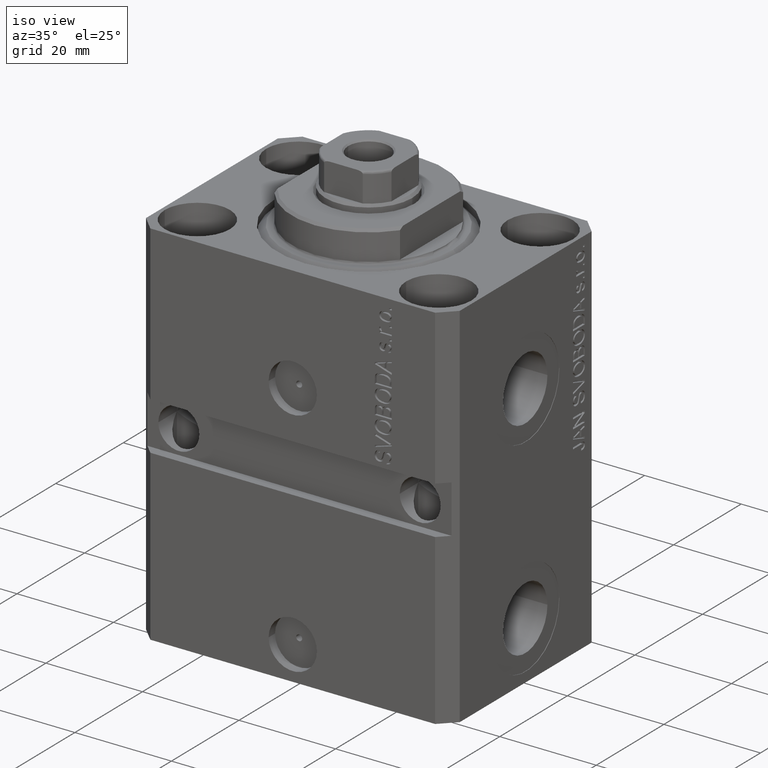
[diagram: clean part render]
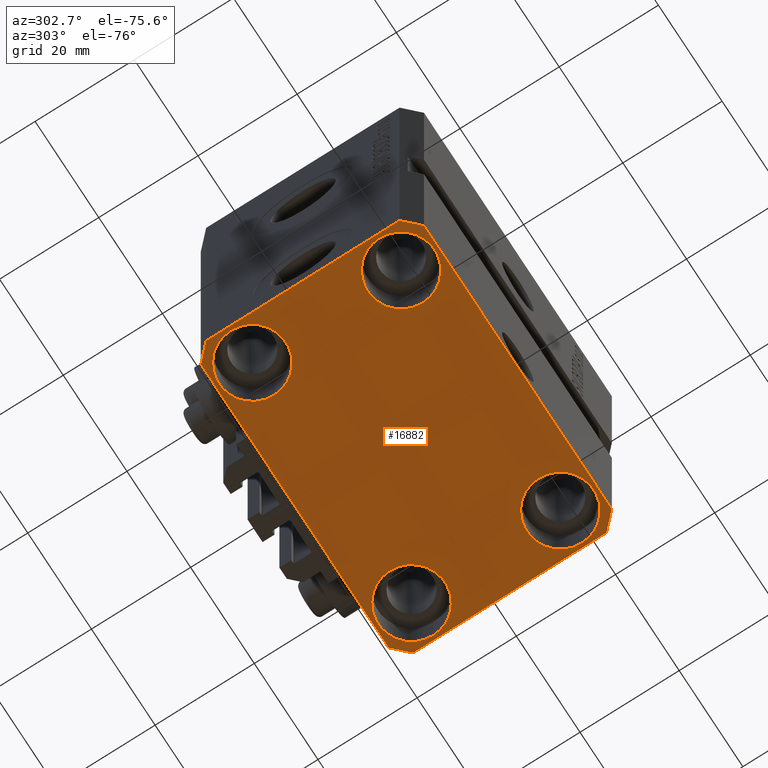
[diagram: tour spotlight — one face highlighted and labeled with its STEP entity id]
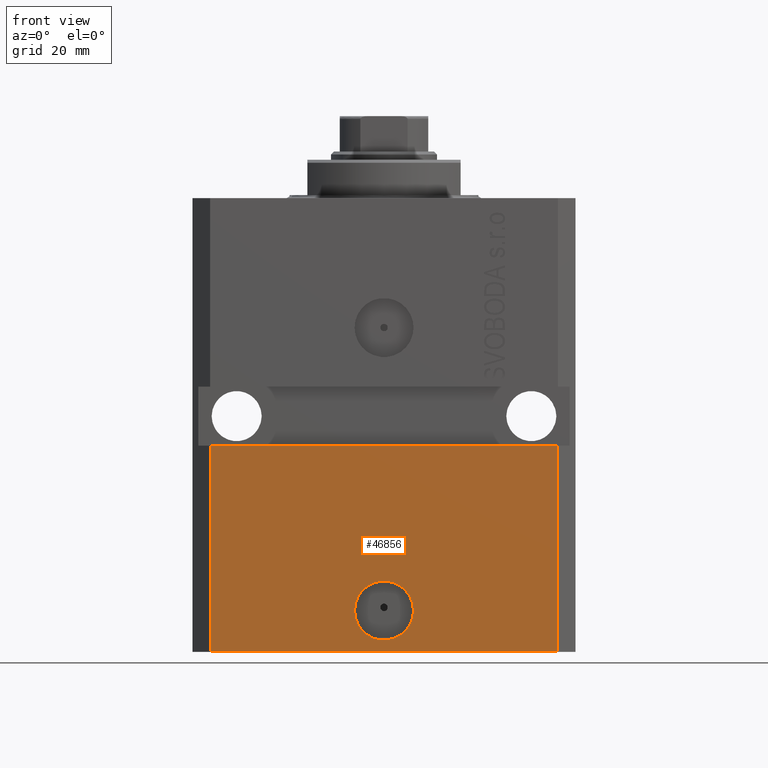
[diagram: tour spotlight — one face highlighted and labeled with its STEP entity id]
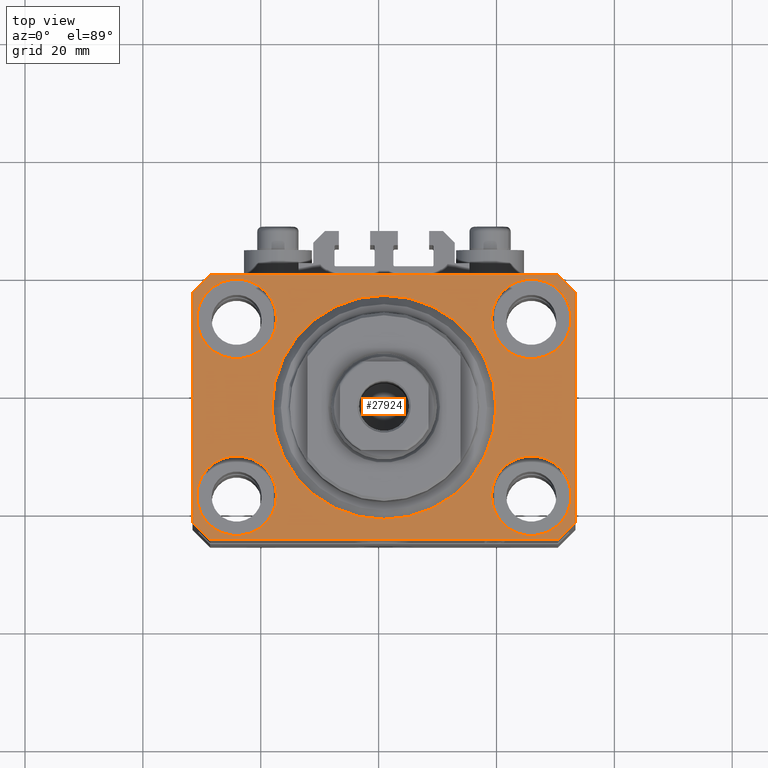
[diagram: tour spotlight — one face highlighted and labeled with its STEP entity id]
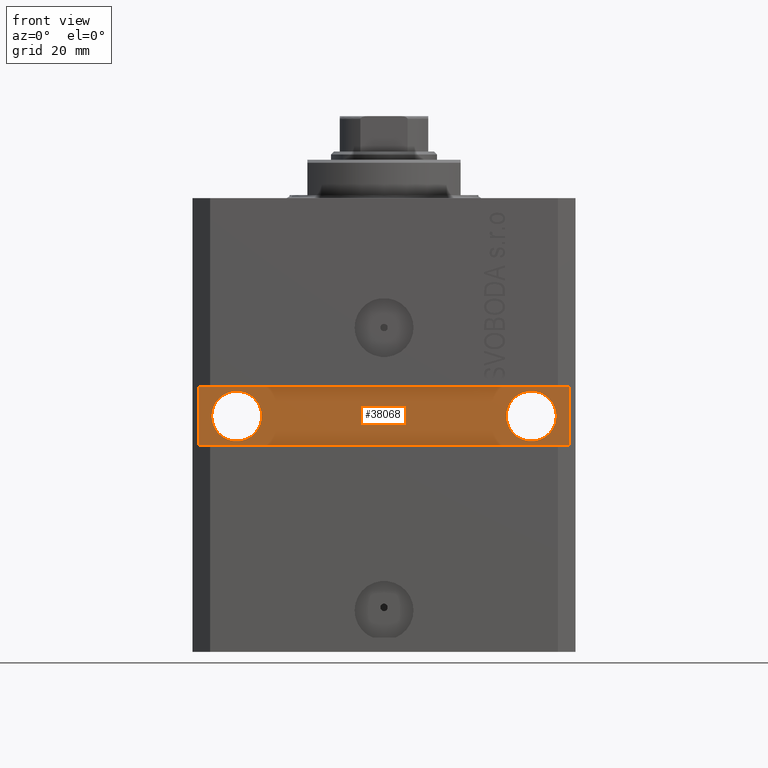
[diagram: tour spotlight — one face highlighted and labeled with its STEP entity id]
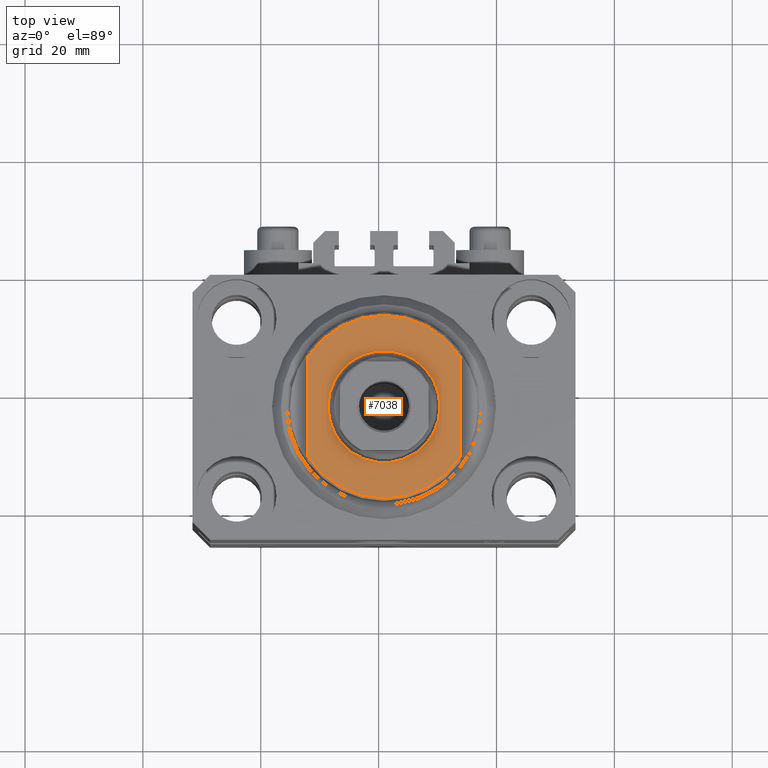
[diagram: tour spotlight — one face highlighted and labeled with its STEP entity id]
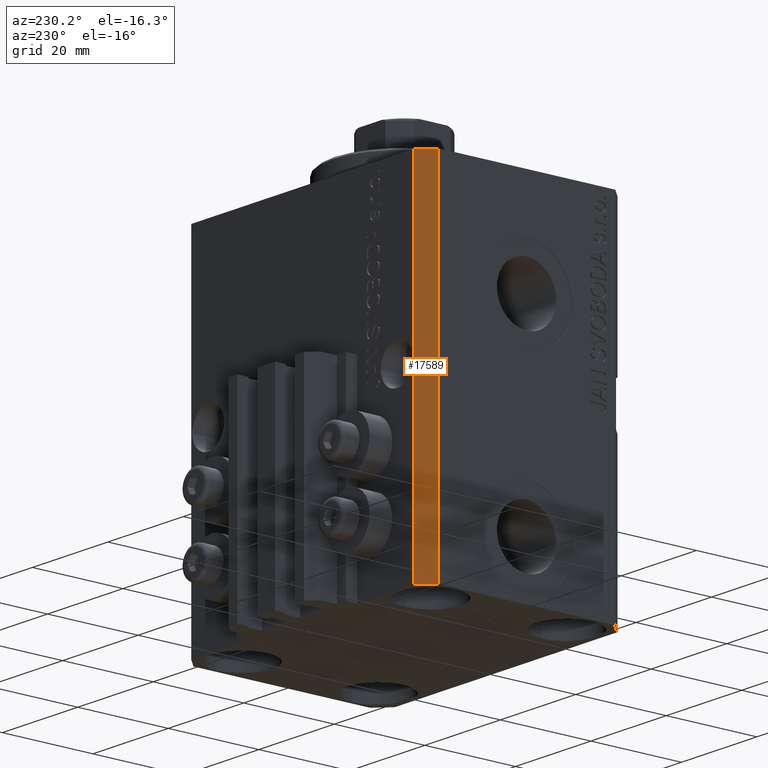
[diagram: tour spotlight — one face highlighted and labeled with its STEP entity id]
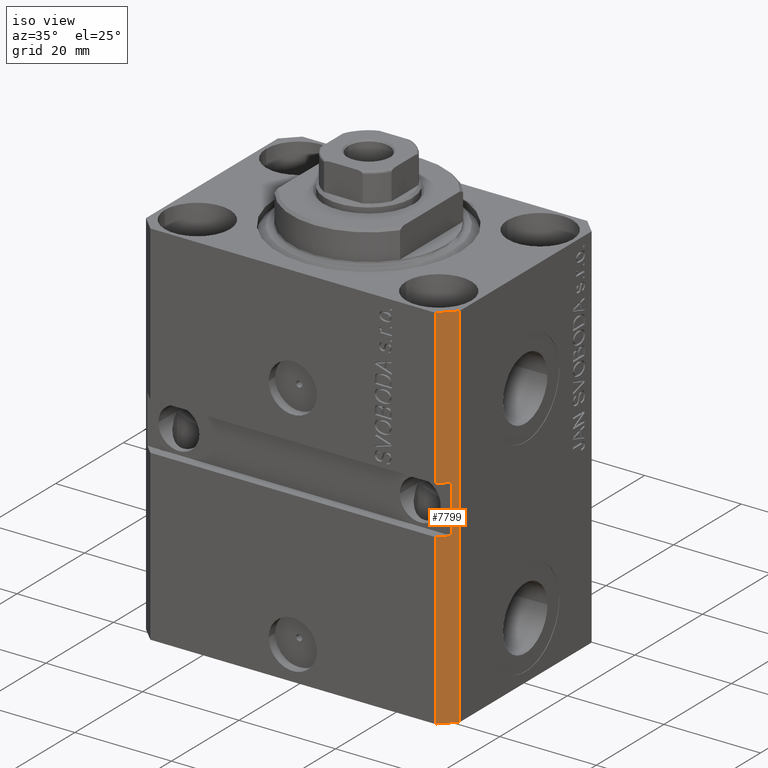
[diagram: tour spotlight — one face highlighted and labeled with its STEP entity id]
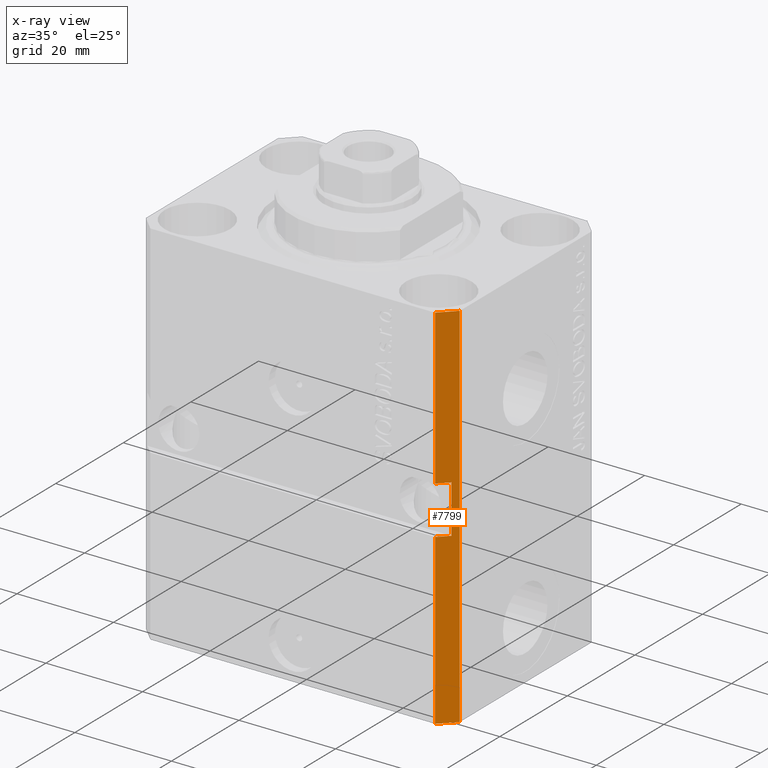
[diagram: x-ray of the same camera — body ghosted, this tour face saturated]
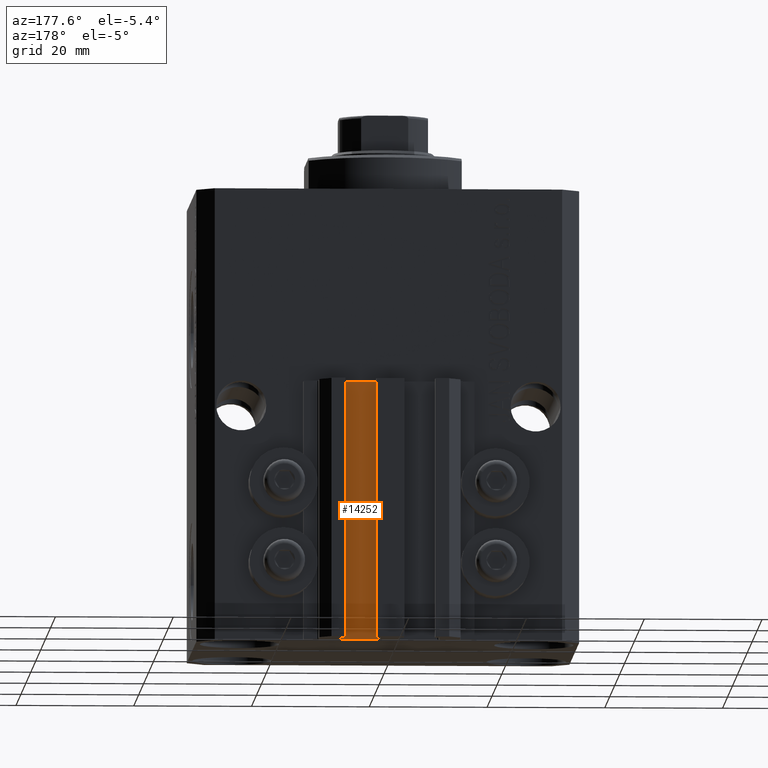
[diagram: tour spotlight — one face highlighted and labeled with its STEP entity id]
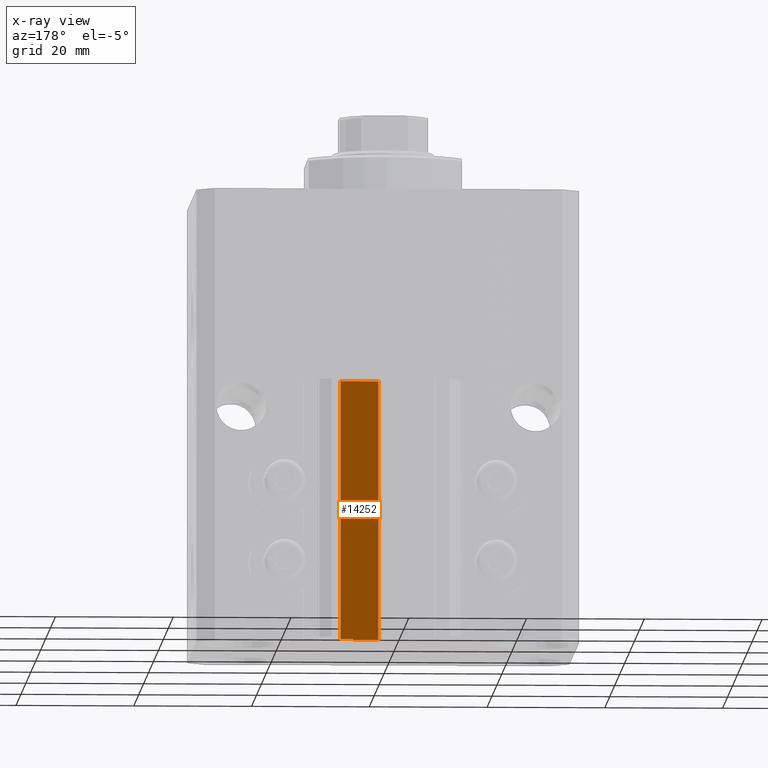
[diagram: x-ray of the same camera — body ghosted, this tour face saturated]
A machine part: a face-by-face anatomy tour. The part has 1083 B-rep faces; the first image is the clean iso view, then the 8 largest visible faces are spotlighted one at a time (largest first), each with its STEP entity span.

Face 1 — auxiliary view, entity #16882. In plain terms, the highlighted planar face has unit normal (0, 0, 1).
Definition (entity closure, byte-faithful):
#1248 = FACE_BOUND ( 'NONE', #45873, .T. ) ;
#1273 = AXIS2_PLACEMENT_3D ( 'NONE', #28991, #7287, #36946 ) ;
#1515 = CIRCLE ( 'NONE', #33826, 6.750000000041541881 ) ;
#1614 = CARTESIAN_POINT ( 'NONE',  ( 18.25000000002253842, -15.00000000000000000, -77.00000000000000000 ) ) ;
#1809 = CARTESIAN_POINT ( 'NONE',  ( 31.74999999997746869, -15.00000000000000000, -77.00000000000000000 ) ) ;
#2023 = CIRCLE ( 'NONE', #26658, 6.750000000022533087 ) ;
#2032 = VERTEX_POINT ( 'NONE', #14119 ) ;
#2040 = VERTEX_POINT ( 'NONE', #11461 ) ;
#2129 = DIRECTION ( 'NONE',  ( 0.000000000000000000, -1.000000000000000000, 0.000000000000000000 ) ) ;
#2364 = CARTESIAN_POINT ( 'NONE',  ( -32.49999999999650413, 19.49999999999949907, -77.00000000000000000 ) ) ;
#2540 = DIRECTION ( 'NONE',  ( -0.7071067811865474617, -0.7071067811865474617, 0.000000000000000000 ) ) ;
#2775 = EDGE_CURVE ( 'NONE', #25557, #39934, #33511, .T. ) ;
#3003 = EDGE_CURVE ( 'NONE', #25565, #27268, #20941, .T. ) ;
#3036 = VECTOR ( 'NONE', #9636, 1000.000000000000000 ) ;
#3392 = DIRECTION ( 'NONE',  ( 1.000000000000000000, 0.000000000000000000, 0.000000000000000000 ) ) ;
#3613 = DIRECTION ( 'NONE',  ( -0.000000000000000000, -0.000000000000000000, 1.000000000000000000 ) ) ;
#4563 = DIRECTION ( 'NONE',  ( 1.000000000000000000, 0.000000000000000000, 0.000000000000000000 ) ) ;
#4594 = EDGE_CURVE ( 'NONE', #39934, #25557, #46688, .T. ) ;
#6729 = DIRECTION ( 'NONE',  ( 0.7071067811865474617, -0.7071067811865474617, 0.000000000000000000 ) ) ;
#7287 = DIRECTION ( 'NONE',  ( -0.000000000000000000, -0.000000000000000000, 1.000000000000000000 ) ) ;
#7723 = DIRECTION ( 'NONE',  ( 1.000000000000000000, 0.000000000000000000, 0.000000000000000000 ) ) ;
#8222 = ORIENTED_EDGE ( 'NONE', *, *, #39218, .F. ) ;
#8383 = CARTESIAN_POINT ( 'NONE',  ( 32.49999999999651124, -19.49999999999949196, -77.00000000000000000 ) ) ;
#8990 = AXIS2_PLACEMENT_3D ( 'NONE', #47300, #35703, #43692 ) ;
#9047 = VERTEX_POINT ( 'NONE', #11780 ) ;
#9063 = CARTESIAN_POINT ( 'NONE',  ( 29.49999999999707967, 22.49999999999951328, -77.00000000000000000 ) ) ;
#9636 = DIRECTION ( 'NONE',  ( -0.7071067811865352493, 0.7071067811865597852, 0.000000000000000000 ) ) ;
#9659 = ORIENTED_EDGE ( 'NONE', *, *, #4594, .T. ) ;
#9784 = LINE ( 'NONE', #9063, #32935 ) ;
#9839 = CARTESIAN_POINT ( 'NONE',  ( -29.49999999999650413, -22.49999999999949907, -77.00000000000000000 ) ) ;
#9927 = FACE_BOUND ( 'NONE', #41431, .T. ) ;
#10142 = ORIENTED_EDGE ( 'NONE', *, *, #45852, .F. ) ;
#10438 = EDGE_CURVE ( 'NONE', #34247, #32129, #18900, .T. ) ;
#10885 = DIRECTION ( 'NONE',  ( 1.000000000000000000, 0.000000000000000000, 0.000000000000000000 ) ) ;
#11182 = VECTOR ( 'NONE', #46501, 1000.000000000000000 ) ;
#11461 = CARTESIAN_POINT ( 'NONE',  ( 29.49999999999650413, -22.49999999999949196, -77.00000000000000000 ) ) ;
#11492 = ORIENTED_EDGE ( 'NONE', *, *, #3003, .F. ) ;
#11780 = CARTESIAN_POINT ( 'NONE',  ( -29.49999999999650413, 22.49999999999949907, -77.00000000000000000 ) ) ;
#11962 = VERTEX_POINT ( 'NONE', #17816 ) ;
#12093 = EDGE_LOOP ( 'NONE', ( #18852, #45689 ) ) ;
#12287 = CARTESIAN_POINT ( 'NONE',  ( -18.24999999995845812, -15.00000000000000000, -77.00000000000000000 ) ) ;
#12294 = CARTESIAN_POINT ( 'NONE',  ( 32.49999999999651124, -19.49999999999949196, -77.00000000000000000 ) ) ;
#13542 = CARTESIAN_POINT ( 'NONE',  ( -32.49999999999650413, 19.49999999999949907, -77.00000000000000000 ) ) ;
#14119 = CARTESIAN_POINT ( 'NONE',  ( -31.75000000002253842, 15.00000000000000000, -77.00000000000000000 ) ) ;
#15068 = VECTOR ( 'NONE', #6729, 1000.000000000000114 ) ;
#15114 = CIRCLE ( 'NONE', #22783, 6.749999999958452790 ) ;
#15931 = EDGE_LOOP ( 'NONE', ( #10142, #23894, #42546, #19541, #34572, #11492, #20737, #8222 ) ) ;
#15984 = CARTESIAN_POINT ( 'NONE',  ( -25.00000000000000355, -15.00000000000000000, -77.00000000000000000 ) ) ;
#16092 = LINE ( 'NONE', #8383, #22825 ) ;
#16882 = ADVANCED_FACE ( 'NONE', ( #1248, #19556, #28708, #9927, #47076 ), #32557, .F. ) ;
#17053 = VERTEX_POINT ( 'NONE', #12294 ) ;
#17467 = EDGE_CURVE ( 'NONE', #17053, #18712, #16092, .T. ) ;
#17533 = VERTEX_POINT ( 'NONE', #33929 ) ;
#17643 = CARTESIAN_POINT ( 'NONE',  ( 24.99999999999999645, 15.00000000000000888, -77.00000000000000000 ) ) ;
#17705 = DIRECTION ( 'NONE',  ( 1.000000000000000000, 0.000000000000000000, 0.000000000000000000 ) ) ;
#17816 = CARTESIAN_POINT ( 'NONE',  ( 18.25000000004154543, 15.00000000000000888, -77.00000000000000000 ) ) ;
#18494 = VECTOR ( 'NONE', #40845, 1000.000000000000000 ) ;
#18712 = VERTEX_POINT ( 'NONE', #23719 ) ;
#18852 = ORIENTED_EDGE ( 'NONE', *, *, #41347, .T. ) ;
#18900 = CIRCLE ( 'NONE', #45888, 6.750000000041541881 ) ;
#19541 = ORIENTED_EDGE ( 'NONE', *, *, #26282, .F. ) ;
#19556 = FACE_BOUND ( 'NONE', #39086, .T. ) ;
#20208 = LINE ( 'NONE', #2364, #33010 ) ;
#20737 = ORIENTED_EDGE ( 'NONE', *, *, #22531, .F. ) ;
#20783 = ORIENTED_EDGE ( 'NONE', *, *, #28070, .T. ) ;
#20941 = LINE ( 'NONE', #35895, #15068 ) ;
#21557 = VERTEX_POINT ( 'NONE', #36879 ) ;
#22498 = CARTESIAN_POINT ( 'NONE',  ( -18.24999999997747224, 15.00000000000000000, -77.00000000000000000 ) ) ;
#22531 = EDGE_CURVE ( 'NONE', #30824, #25565, #20208, .T. ) ;
#22783 = AXIS2_PLACEMENT_3D ( 'NONE', #17643, #43949, #10885 ) ;
#22825 = VECTOR ( 'NONE', #38027, 1000.000000000000000 ) ;
#23719 = CARTESIAN_POINT ( 'NONE',  ( 32.49999999999702993, 19.49999999999945999, -77.00000000000000000 ) ) ;
#23894 = ORIENTED_EDGE ( 'NONE', *, *, #27559, .F. ) ;
#24149 = CARTESIAN_POINT ( 'NONE',  ( -29.49999999999650413, -22.49999999999949907, -77.00000000000000000 ) ) ;
#24955 = CARTESIAN_POINT ( 'NONE',  ( -31.75000000004154899, -15.00000000000000000, -77.00000000000000000 ) ) ;
#25557 = VERTEX_POINT ( 'NONE', #1809 ) ;
#25565 = VERTEX_POINT ( 'NONE', #46443 ) ;
#26109 = CARTESIAN_POINT ( 'NONE',  ( 29.49999999999650413, -22.49999999999949196, -77.00000000000000000 ) ) ;
#26282 = EDGE_CURVE ( 'NONE', #2040, #17053, #43760, .T. ) ;
#26658 = AXIS2_PLACEMENT_3D ( 'NONE', #35783, #35315, #17705 ) ;
#27268 = VERTEX_POINT ( 'NONE', #24149 ) ;
#27289 = DIRECTION ( 'NONE',  ( 1.000000000000000000, 0.000000000000000000, 0.000000000000000000 ) ) ;
#27559 = EDGE_CURVE ( 'NONE', #18712, #21557, #38824, .T. ) ;
#27756 = DIRECTION ( 'NONE',  ( -0.000000000000000000, -0.000000000000000000, 1.000000000000000000 ) ) ;
#28070 = EDGE_CURVE ( 'NONE', #32129, #34247, #1515, .T. ) ;
#28708 = FACE_BOUND ( 'NONE', #12093, .T. ) ;
#28991 = CARTESIAN_POINT ( 'NONE',  ( -25.00000000000000355, 15.00000000000000000, -77.00000000000000000 ) ) ;
#30341 = LINE ( 'NONE', #41930, #31964 ) ;
#30824 = VERTEX_POINT ( 'NONE', #13542 ) ;
#31165 = AXIS2_PLACEMENT_3D ( 'NONE', #33493, #3613, #4563 ) ;
#31559 = CARTESIAN_POINT ( 'NONE',  ( 32.49999999999702993, 19.49999999999945999, -77.00000000000000000 ) ) ;
#31750 = LINE ( 'NONE', #9839, #11182 ) ;
#31964 = VECTOR ( 'NONE', #2540, 1000.000000000000114 ) ;
#32129 = VERTEX_POINT ( 'NONE', #12287 ) ;
#32557 = PLANE ( 'NONE',  #8990 ) ;
#32935 = VECTOR ( 'NONE', #42355, 1000.000000000000000 ) ;
#33010 = VECTOR ( 'NONE', #2129, 1000.000000000000000 ) ;
#33493 = CARTESIAN_POINT ( 'NONE',  ( 24.99999999999999645, 15.00000000000000888, -77.00000000000000000 ) ) ;
#33511 = CIRCLE ( 'NONE', #46613, 6.749999999977465137 ) ;
#33826 = AXIS2_PLACEMENT_3D ( 'NONE', #15984, #38645, #27289 ) ;
#33929 = CARTESIAN_POINT ( 'NONE',  ( 31.74999999995845101, 15.00000000000000888, -77.00000000000000000 ) ) ;
#34247 = VERTEX_POINT ( 'NONE', #24955 ) ;
#34572 = ORIENTED_EDGE ( 'NONE', *, *, #38349, .F. ) ;
#34726 = DIRECTION ( 'NONE',  ( -0.000000000000000000, -0.000000000000000000, 1.000000000000000000 ) ) ;
#34992 = CARTESIAN_POINT ( 'NONE',  ( 25.00000000000000355, -15.00000000000000000, -77.00000000000000000 ) ) ;
#35315 = DIRECTION ( 'NONE',  ( -0.000000000000000000, -0.000000000000000000, 1.000000000000000000 ) ) ;
#35619 = ORIENTED_EDGE ( 'NONE', *, *, #42342, .T. ) ;
#35671 = DIRECTION ( 'NONE',  ( 1.000000000000000000, 0.000000000000000000, 0.000000000000000000 ) ) ;
#35703 = DIRECTION ( 'NONE',  ( 0.000000000000000000, 0.000000000000000000, 1.000000000000000000 ) ) ;
#35783 = CARTESIAN_POINT ( 'NONE',  ( -25.00000000000000355, 15.00000000000000000, -77.00000000000000000 ) ) ;
#35895 = CARTESIAN_POINT ( 'NONE',  ( -32.49999999999650413, -19.49999999999949907, -77.00000000000000000 ) ) ;
#36879 = CARTESIAN_POINT ( 'NONE',  ( 29.49999999999707967, 22.49999999999951328, -77.00000000000000000 ) ) ;
#36936 = ORIENTED_EDGE ( 'NONE', *, *, #41998, .T. ) ;
#36946 = DIRECTION ( 'NONE',  ( 1.000000000000000000, 0.000000000000000000, 0.000000000000000000 ) ) ;
#38027 = DIRECTION ( 'NONE',  ( 1.334402673828349134E-14, 1.000000000000000000, 0.000000000000000000 ) ) ;
#38285 = ORIENTED_EDGE ( 'NONE', *, *, #2775, .T. ) ;
#38349 = EDGE_CURVE ( 'NONE', #27268, #2040, #31750, .T. ) ;
#38645 = DIRECTION ( 'NONE',  ( -0.000000000000000000, -0.000000000000000000, 1.000000000000000000 ) ) ;
#38824 = LINE ( 'NONE', #31559, #3036 ) ;
#39086 = EDGE_LOOP ( 'NONE', ( #9659, #38285 ) ) ;
#39160 = EDGE_CURVE ( 'NONE', #17533, #11962, #46626, .T. ) ;
#39218 = EDGE_CURVE ( 'NONE', #9047, #30824, #30341, .T. ) ;
#39934 = VERTEX_POINT ( 'NONE', #1614 ) ;
#40529 = AXIS2_PLACEMENT_3D ( 'NONE', #46794, #34726, #35671 ) ;
#40845 = DIRECTION ( 'NONE',  ( 0.7071067811865483499, 0.7071067811865466846, 0.000000000000000000 ) ) ;
#41083 = VERTEX_POINT ( 'NONE', #22498 ) ;
#41229 = CARTESIAN_POINT ( 'NONE',  ( -25.00000000000000355, -15.00000000000000000, -77.00000000000000000 ) ) ;
#41311 = CIRCLE ( 'NONE', #1273, 6.750000000022533087 ) ;
#41347 = EDGE_CURVE ( 'NONE', #11962, #17533, #15114, .T. ) ;
#41431 = EDGE_LOOP ( 'NONE', ( #36936, #35619 ) ) ;
#41930 = CARTESIAN_POINT ( 'NONE',  ( -29.49999999999650413, 22.49999999999949907, -77.00000000000000000 ) ) ;
#41998 = EDGE_CURVE ( 'NONE', #2032, #41083, #2023, .T. ) ;
#42342 = EDGE_CURVE ( 'NONE', #41083, #2032, #41311, .T. ) ;
#42355 = DIRECTION ( 'NONE',  ( -1.000000000000000000, -2.352167425053553784E-16, 0.000000000000000000 ) ) ;
#42546 = ORIENTED_EDGE ( 'NONE', *, *, #17467, .F. ) ;
#42628 = ORIENTED_EDGE ( 'NONE', *, *, #10438, .T. ) ;
#43692 = DIRECTION ( 'NONE',  ( 1.000000000000000000, 0.000000000000000000, -0.000000000000000000 ) ) ;
#43760 = LINE ( 'NONE', #26109, #18494 ) ;
#43949 = DIRECTION ( 'NONE',  ( -0.000000000000000000, -0.000000000000000000, 1.000000000000000000 ) ) ;
#45100 = DIRECTION ( 'NONE',  ( -0.000000000000000000, -0.000000000000000000, 1.000000000000000000 ) ) ;
#45689 = ORIENTED_EDGE ( 'NONE', *, *, #39160, .T. ) ;
#45852 = EDGE_CURVE ( 'NONE', #21557, #9047, #9784, .T. ) ;
#45873 = EDGE_LOOP ( 'NONE', ( #42628, #20783 ) ) ;
#45888 = AXIS2_PLACEMENT_3D ( 'NONE', #41229, #45100, #7723 ) ;
#46443 = CARTESIAN_POINT ( 'NONE',  ( -32.49999999999650413, -19.49999999999949907, -77.00000000000000000 ) ) ;
#46501 = DIRECTION ( 'NONE',  ( 1.000000000000000000, 1.176083712526788232E-16, 0.000000000000000000 ) ) ;
#46613 = AXIS2_PLACEMENT_3D ( 'NONE', #34992, #27756, #3392 ) ;
#46626 = CIRCLE ( 'NONE', #31165, 6.749999999958452790 ) ;
#46688 = CIRCLE ( 'NONE', #40529, 6.749999999977465137 ) ;
#46794 = CARTESIAN_POINT ( 'NONE',  ( 25.00000000000000355, -15.00000000000000000, -77.00000000000000000 ) ) ;
#47076 = FACE_OUTER_BOUND ( 'NONE', #15931, .T. ) ;
#47300 = CARTESIAN_POINT ( 'NONE',  ( 0.000000000000000000, 0.000000000000000000, -77.00000000000000000 ) ) ;

Face 2 — front view, entity #46856. In plain terms, the highlighted planar face has unit normal (0, -1, 0).
Definition (entity closure, byte-faithful):
#1463 = EDGE_LOOP ( 'NONE', ( #27243, #16178, #22688, #37837 ) ) ;
#2040 = VERTEX_POINT ( 'NONE', #11461 ) ;
#2206 = AXIS2_PLACEMENT_3D ( 'NONE', #31706, #35347, #35097 ) ;
#2547 = EDGE_CURVE ( 'NONE', #27268, #34506, #19101, .T. ) ;
#5691 = FACE_BOUND ( 'NONE', #17183, .T. ) ;
#6681 = LINE ( 'NONE', #28836, #28433 ) ;
#8254 = CARTESIAN_POINT ( 'NONE',  ( -29.49999999999650413, -22.49999999999949907, -77.00000000000000000 ) ) ;
#8290 = CARTESIAN_POINT ( 'NONE',  ( -5.000000000000002665, -22.49999999999949551, -69.99999999999998579 ) ) ;
#9839 = CARTESIAN_POINT ( 'NONE',  ( -29.49999999999650413, -22.49999999999949907, -77.00000000000000000 ) ) ;
#10426 = VECTOR ( 'NONE', #26808, 1000.000000000000000 ) ;
#11182 = VECTOR ( 'NONE', #46501, 1000.000000000000000 ) ;
#11461 = CARTESIAN_POINT ( 'NONE',  ( 29.49999999999650413, -22.49999999999949196, -77.00000000000000000 ) ) ;
#12443 = LINE ( 'NONE', #37294, #21411 ) ;
#16178 = ORIENTED_EDGE ( 'NONE', *, *, #2547, .F. ) ;
#16949 = VERTEX_POINT ( 'NONE', #41236 ) ;
#17145 = DIRECTION ( 'NONE',  ( 1.000000000000000000, 0.000000000000000000, 0.000000000000000000 ) ) ;
#17183 = EDGE_LOOP ( 'NONE', ( #46808, #46819 ) ) ;
#17378 = DIRECTION ( 'NONE',  ( 1.176083712526788232E-16, -1.000000000000000000, 0.000000000000000000 ) ) ;
#19101 = LINE ( 'NONE', #8254, #10426 ) ;
#20122 = AXIS2_PLACEMENT_3D ( 'NONE', #43439, #17378, #17145 ) ;
#20546 = CARTESIAN_POINT ( 'NONE',  ( -29.49999999999650413, -22.49999999999949907, -41.99999999999999289 ) ) ;
#21411 = VECTOR ( 'NONE', #27136, 1000.000000000000000 ) ;
#22688 = ORIENTED_EDGE ( 'NONE', *, *, #38349, .T. ) ;
#23897 = EDGE_CURVE ( 'NONE', #2040, #16949, #6681, .T. ) ;
#24149 = CARTESIAN_POINT ( 'NONE',  ( -29.49999999999650413, -22.49999999999949907, -77.00000000000000000 ) ) ;
#25245 = VERTEX_POINT ( 'NONE', #31986 ) ;
#25781 = VERTEX_POINT ( 'NONE', #8290 ) ;
#26808 = DIRECTION ( 'NONE',  ( 0.000000000000000000, 0.000000000000000000, 1.000000000000000000 ) ) ;
#27136 = DIRECTION ( 'NONE',  ( 1.000000000000000000, 1.067522139062765303E-16, 1.067522139062765303E-16 ) ) ;
#27243 = ORIENTED_EDGE ( 'NONE', *, *, #45748, .F. ) ;
#27268 = VERTEX_POINT ( 'NONE', #24149 ) ;
#27862 = FACE_OUTER_BOUND ( 'NONE', #1463, .T. ) ;
#28433 = VECTOR ( 'NONE', #46973, 1000.000000000000000 ) ;
#28564 = CARTESIAN_POINT ( 'NONE',  ( 2.646188353185214061E-15, -22.49999999999949551, -69.99999999999998579 ) ) ;
#28836 = CARTESIAN_POINT ( 'NONE',  ( 29.49999999999650413, -22.49999999999949196, -77.00000000000000000 ) ) ;
#31706 = CARTESIAN_POINT ( 'NONE',  ( -29.49999999999650413, -22.49999999999949907, -77.00000000000000000 ) ) ;
#31750 = LINE ( 'NONE', #9839, #11182 ) ;
#31858 = EDGE_CURVE ( 'NONE', #25245, #25781, #40946, .T. ) ;
#31986 = CARTESIAN_POINT ( 'NONE',  ( 5.000000000000007994, -22.49999999999949551, -69.99999999999998579 ) ) ;
#34506 = VERTEX_POINT ( 'NONE', #20546 ) ;
#35097 = DIRECTION ( 'NONE',  ( 1.000000000000000000, 1.176083712526788232E-16, 0.000000000000000000 ) ) ;
#35347 = DIRECTION ( 'NONE',  ( 1.176083712526788232E-16, -1.000000000000000000, 0.000000000000000000 ) ) ;
#37294 = CARTESIAN_POINT ( 'NONE',  ( -32.49999999999650413, -22.49999999999949907, -41.99999999999999289 ) ) ;
#37664 = AXIS2_PLACEMENT_3D ( 'NONE', #28564, #43539, #47390 ) ;
#37837 = ORIENTED_EDGE ( 'NONE', *, *, #23897, .T. ) ;
#38349 = EDGE_CURVE ( 'NONE', #27268, #2040, #31750, .T. ) ;
#40946 = CIRCLE ( 'NONE', #20122, 5.000000000000005329 ) ;
#41236 = CARTESIAN_POINT ( 'NONE',  ( 29.49999999999650058, -22.49999999999949196, -41.99999999999998579 ) ) ;
#43048 = CIRCLE ( 'NONE', #37664, 5.000000000000005329 ) ;
#43439 = CARTESIAN_POINT ( 'NONE',  ( 2.646188353185214061E-15, -22.49999999999949551, -69.99999999999998579 ) ) ;
#43539 = DIRECTION ( 'NONE',  ( 1.176083712526788232E-16, -1.000000000000000000, 0.000000000000000000 ) ) ;
#45740 = PLANE ( 'NONE',  #2206 ) ;
#45748 = EDGE_CURVE ( 'NONE', #34506, #16949, #12443, .T. ) ;
#46501 = DIRECTION ( 'NONE',  ( 1.000000000000000000, 1.176083712526788232E-16, 0.000000000000000000 ) ) ;
#46808 = ORIENTED_EDGE ( 'NONE', *, *, #31858, .F. ) ;
#46819 = ORIENTED_EDGE ( 'NONE', *, *, #47729, .F. ) ;
#46856 = ADVANCED_FACE ( 'NONE', ( #5691, #27862 ), #45740, .T. ) ;
#46973 = DIRECTION ( 'NONE',  ( 0.000000000000000000, 0.000000000000000000, 1.000000000000000000 ) ) ;
#47390 = DIRECTION ( 'NONE',  ( 1.000000000000000000, 0.000000000000000000, 0.000000000000000000 ) ) ;
#47729 = EDGE_CURVE ( 'NONE', #25781, #25245, #43048, .T. ) ;

Face 3 — top view, entity #27924. In plain terms, the highlighted planar face has unit normal (0, 0, 1).
Definition (entity closure, byte-faithful):
#284 = CARTESIAN_POINT ( 'NONE',  ( 19.00000000000000000, 0.000000000000000000, 0.000000000000000000 ) ) ;
#354 = ORIENTED_EDGE ( 'NONE', *, *, #21072, .T. ) ;
#506 = EDGE_CURVE ( 'NONE', #17650, #7878, #29984, .T. ) ;
#575 = CARTESIAN_POINT ( 'NONE',  ( -29.49999999999650413, 22.49999999999949907, 0.000000000000000000 ) ) ;
#725 = CARTESIAN_POINT ( 'NONE',  ( 29.49999999999707967, 22.49999999999951328, 0.000000000000000000 ) ) ;
#907 = DIRECTION ( 'NONE',  ( 0.000000000000000000, 0.000000000000000000, 1.000000000000000000 ) ) ;
#1190 = AXIS2_PLACEMENT_3D ( 'NONE', #12179, #41600, #34595 ) ;
#1433 = DIRECTION ( 'NONE',  ( -1.000000000000000000, -2.352167425053553784E-16, 0.000000000000000000 ) ) ;
#1489 = AXIS2_PLACEMENT_3D ( 'NONE', #42629, #12247, #43345 ) ;
#1636 = VERTEX_POINT ( 'NONE', #10566 ) ;
#1658 = DIRECTION ( 'NONE',  ( 0.000000000000000000, 0.000000000000000000, 1.000000000000000000 ) ) ;
#2141 = AXIS2_PLACEMENT_3D ( 'NONE', #35570, #9773, #36049 ) ;
#2662 = CARTESIAN_POINT ( 'NONE',  ( -31.75000000004154899, -15.00000000000000000, 0.000000000000000000 ) ) ;
#2889 = EDGE_LOOP ( 'NONE', ( #8696, #36521 ) ) ;
#3072 = EDGE_CURVE ( 'NONE', #9197, #41643, #39739, .T. ) ;
#3290 = CARTESIAN_POINT ( 'NONE',  ( 0.000000000000000000, 0.000000000000000000, 0.000000000000000000 ) ) ;
#3764 = ORIENTED_EDGE ( 'NONE', *, *, #43431, .T. ) ;
#4020 = VECTOR ( 'NONE', #19529, 1000.000000000000000 ) ;
#4286 = CARTESIAN_POINT ( 'NONE',  ( -29.49999999999650413, -22.49999999999949907, 0.000000000000000000 ) ) ;
#4465 = EDGE_CURVE ( 'NONE', #36175, #7276, #26518, .T. ) ;
#5784 = CIRCLE ( 'NONE', #44334, 6.750000000041541881 ) ;
#6410 = CARTESIAN_POINT ( 'NONE',  ( 32.49999999999702993, 19.49999999999945999, 0.000000000000000000 ) ) ;
#6642 = VECTOR ( 'NONE', #41962, 1000.000000000000114 ) ;
#7276 = VERTEX_POINT ( 'NONE', #4286 ) ;
#7878 = VERTEX_POINT ( 'NONE', #29268 ) ;
#7976 = CARTESIAN_POINT ( 'NONE',  ( -32.49999999999650413, -19.49999999999949907, 0.000000000000000000 ) ) ;
#8300 = VERTEX_POINT ( 'NONE', #45960 ) ;
#8696 = ORIENTED_EDGE ( 'NONE', *, *, #43875, .F. ) ;
#8742 = DIRECTION ( 'NONE',  ( 0.000000000000000000, 0.000000000000000000, 1.000000000000000000 ) ) ;
#9060 = CARTESIAN_POINT ( 'NONE',  ( -25.00000000000000355, -15.00000000000000000, 0.000000000000000000 ) ) ;
#9093 = CARTESIAN_POINT ( 'NONE',  ( 24.99999999999999645, 15.00000000000000888, 0.000000000000000000 ) ) ;
#9197 = VERTEX_POINT ( 'NONE', #11705 ) ;
#9714 = CARTESIAN_POINT ( 'NONE',  ( 29.49999999999650413, -22.49999999999949196, 0.000000000000000000 ) ) ;
#9753 = AXIS2_PLACEMENT_3D ( 'NONE', #25515, #22131, #11283 ) ;
#9773 = DIRECTION ( 'NONE',  ( 0.000000000000000000, 0.000000000000000000, 1.000000000000000000 ) ) ;
#10033 = LINE ( 'NONE', #6410, #17492 ) ;
#10140 = CARTESIAN_POINT ( 'NONE',  ( 32.49999999999651124, -19.49999999999949196, 0.000000000000000000 ) ) ;
#10278 = CARTESIAN_POINT ( 'NONE',  ( -29.49999999999650413, 22.49999999999949907, 0.000000000000000000 ) ) ;
#10402 = AXIS2_PLACEMENT_3D ( 'NONE', #38561, #1658, #23589 ) ;
#10566 = CARTESIAN_POINT ( 'NONE',  ( 18.25000000002253842, -15.00000000000000000, 0.000000000000000000 ) ) ;
#11283 = DIRECTION ( 'NONE',  ( 1.000000000000000000, 0.000000000000000000, 0.000000000000000000 ) ) ;
#11599 = CARTESIAN_POINT ( 'NONE',  ( 29.49999999999707967, 22.49999999999951328, 0.000000000000000000 ) ) ;
#11613 = LINE ( 'NONE', #26776, #4020 ) ;
#11705 = CARTESIAN_POINT ( 'NONE',  ( -31.75000000002253842, 15.00000000000000000, 0.000000000000000000 ) ) ;
#11964 = ORIENTED_EDGE ( 'NONE', *, *, #17383, .F. ) ;
#12113 = DIRECTION ( 'NONE',  ( 1.000000000000000000, 0.000000000000000000, 0.000000000000000000 ) ) ;
#12179 = CARTESIAN_POINT ( 'NONE',  ( -25.00000000000000355, 15.00000000000000000, 0.000000000000000000 ) ) ;
#12247 = DIRECTION ( 'NONE',  ( 0.000000000000000000, 0.000000000000000000, 1.000000000000000000 ) ) ;
#12301 = VECTOR ( 'NONE', #23277, 1000.000000000000000 ) ;
#12975 = EDGE_CURVE ( 'NONE', #41634, #47518, #31930, .T. ) ;
#13529 = ORIENTED_EDGE ( 'NONE', *, *, #506, .T. ) ;
#13564 = ORIENTED_EDGE ( 'NONE', *, *, #40874, .F. ) ;
#14380 = DIRECTION ( 'NONE',  ( 1.000000000000000000, 0.000000000000000000, -0.000000000000000000 ) ) ;
#14601 = AXIS2_PLACEMENT_3D ( 'NONE', #3290, #18479, #14380 ) ;
#14813 = DIRECTION ( 'NONE',  ( -0.7071067811865474617, -0.7071067811865474617, 0.000000000000000000 ) ) ;
#15042 = CIRCLE ( 'NONE', #10402, 6.749999999977465137 ) ;
#15115 = VERTEX_POINT ( 'NONE', #284 ) ;
#16347 = CARTESIAN_POINT ( 'NONE',  ( 0.000000000000000000, 0.000000000000000000, 0.000000000000000000 ) ) ;
#17019 = DIRECTION ( 'NONE',  ( 1.000000000000000000, 0.000000000000000000, 0.000000000000000000 ) ) ;
#17383 = EDGE_CURVE ( 'NONE', #8300, #1636, #17462, .T. ) ;
#17462 = CIRCLE ( 'NONE', #9753, 6.749999999977465137 ) ;
#17492 = VECTOR ( 'NONE', #28090, 1000.000000000000000 ) ;
#17612 = VERTEX_POINT ( 'NONE', #35362 ) ;
#17650 = VERTEX_POINT ( 'NONE', #10278 ) ;
#18479 = DIRECTION ( 'NONE',  ( 0.000000000000000000, 0.000000000000000000, 1.000000000000000000 ) ) ;
#19277 = LINE ( 'NONE', #725, #34421 ) ;
#19529 = DIRECTION ( 'NONE',  ( 1.334402673828349134E-14, 1.000000000000000000, 0.000000000000000000 ) ) ;
#20410 = FACE_BOUND ( 'NONE', #41966, .T. ) ;
#20421 = DIRECTION ( 'NONE',  ( 1.000000000000000000, 0.000000000000000000, 0.000000000000000000 ) ) ;
#20759 = EDGE_CURVE ( 'NONE', #22889, #15115, #33735, .T. ) ;
#20803 = ORIENTED_EDGE ( 'NONE', *, *, #4465, .T. ) ;
#20988 = ORIENTED_EDGE ( 'NONE', *, *, #34650, .T. ) ;
#21072 = EDGE_CURVE ( 'NONE', #44306, #21454, #38901, .T. ) ;
#21128 = FACE_BOUND ( 'NONE', #2889, .T. ) ;
#21454 = VERTEX_POINT ( 'NONE', #10140 ) ;
#22131 = DIRECTION ( 'NONE',  ( 0.000000000000000000, 0.000000000000000000, 1.000000000000000000 ) ) ;
#22889 = VERTEX_POINT ( 'NONE', #35590 ) ;
#23210 = CARTESIAN_POINT ( 'NONE',  ( -25.00000000000000355, -15.00000000000000000, 0.000000000000000000 ) ) ;
#23277 = DIRECTION ( 'NONE',  ( 0.000000000000000000, -1.000000000000000000, 0.000000000000000000 ) ) ;
#23391 = EDGE_LOOP ( 'NONE', ( #13564, #23995 ) ) ;
#23464 = VERTEX_POINT ( 'NONE', #11599 ) ;
#23589 = DIRECTION ( 'NONE',  ( 1.000000000000000000, 0.000000000000000000, 0.000000000000000000 ) ) ;
#23666 = CARTESIAN_POINT ( 'NONE',  ( -25.00000000000000355, 15.00000000000000000, 0.000000000000000000 ) ) ;
#23671 = AXIS2_PLACEMENT_3D ( 'NONE', #23666, #34047, #12113 ) ;
#23891 = EDGE_CURVE ( 'NONE', #17612, #27794, #33829, .T. ) ;
#23988 = EDGE_CURVE ( 'NONE', #7276, #44306, #28965, .T. ) ;
#23995 = ORIENTED_EDGE ( 'NONE', *, *, #23891, .F. ) ;
#24186 = ORIENTED_EDGE ( 'NONE', *, *, #37535, .F. ) ;
#24220 = AXIS2_PLACEMENT_3D ( 'NONE', #16347, #38543, #20421 ) ;
#24724 = CARTESIAN_POINT ( 'NONE',  ( -32.49999999999650413, -19.49999999999949907, 0.000000000000000000 ) ) ;
#25236 = FACE_BOUND ( 'NONE', #23391, .T. ) ;
#25372 = EDGE_CURVE ( 'NONE', #7878, #36175, #41146, .T. ) ;
#25515 = CARTESIAN_POINT ( 'NONE',  ( 25.00000000000000355, -15.00000000000000000, 0.000000000000000000 ) ) ;
#26518 = LINE ( 'NONE', #7976, #6642 ) ;
#26529 = EDGE_LOOP ( 'NONE', ( #24186, #33124 ) ) ;
#26776 = CARTESIAN_POINT ( 'NONE',  ( 32.49999999999651124, -19.49999999999949196, 0.000000000000000000 ) ) ;
#26880 = VECTOR ( 'NONE', #32819, 1000.000000000000000 ) ;
#27794 = VERTEX_POINT ( 'NONE', #38041 ) ;
#27924 = ADVANCED_FACE ( 'NONE', ( #20410, #32221, #25236, #21128, #28839, #40678 ), #28609, .T. ) ;
#28090 = DIRECTION ( 'NONE',  ( -0.7071067811865352493, 0.7071067811865597852, 0.000000000000000000 ) ) ;
#28497 = ORIENTED_EDGE ( 'NONE', *, *, #42709, .T. ) ;
#28609 = PLANE ( 'NONE',  #14601 ) ;
#28788 = VECTOR ( 'NONE', #14813, 1000.000000000000114 ) ;
#28839 = FACE_BOUND ( 'NONE', #26529, .T. ) ;
#28965 = LINE ( 'NONE', #43715, #26880 ) ;
#29094 = VECTOR ( 'NONE', #31637, 1000.000000000000000 ) ;
#29268 = CARTESIAN_POINT ( 'NONE',  ( -32.49999999999650413, 19.49999999999949907, 0.000000000000000000 ) ) ;
#29507 = VERTEX_POINT ( 'NONE', #42067 ) ;
#29742 = ORIENTED_EDGE ( 'NONE', *, *, #39239, .F. ) ;
#29743 = AXIS2_PLACEMENT_3D ( 'NONE', #23210, #8742, #34773 ) ;
#29804 = CARTESIAN_POINT ( 'NONE',  ( -32.49999999999650413, 19.49999999999949907, 0.000000000000000000 ) ) ;
#29984 = LINE ( 'NONE', #575, #28788 ) ;
#31133 = CIRCLE ( 'NONE', #24220, 19.00000000000000000 ) ;
#31637 = DIRECTION ( 'NONE',  ( 0.7071067811865483499, 0.7071067811865466846, 0.000000000000000000 ) ) ;
#31930 = CIRCLE ( 'NONE', #29743, 6.750000000041541881 ) ;
#32221 = FACE_BOUND ( 'NONE', #34675, .T. ) ;
#32819 = DIRECTION ( 'NONE',  ( 1.000000000000000000, 1.176083712526788232E-16, 0.000000000000000000 ) ) ;
#33124 = ORIENTED_EDGE ( 'NONE', *, *, #20759, .F. ) ;
#33735 = CIRCLE ( 'NONE', #2141, 19.00000000000000000 ) ;
#33829 = CIRCLE ( 'NONE', #1489, 6.749999999958452790 ) ;
#34047 = DIRECTION ( 'NONE',  ( 0.000000000000000000, 0.000000000000000000, 1.000000000000000000 ) ) ;
#34421 = VECTOR ( 'NONE', #1433, 1000.000000000000000 ) ;
#34595 = DIRECTION ( 'NONE',  ( 1.000000000000000000, 0.000000000000000000, 0.000000000000000000 ) ) ;
#34650 = EDGE_CURVE ( 'NONE', #21454, #29507, #11613, .T. ) ;
#34675 = EDGE_LOOP ( 'NONE', ( #11964, #29742 ) ) ;
#34773 = DIRECTION ( 'NONE',  ( 1.000000000000000000, 0.000000000000000000, 0.000000000000000000 ) ) ;
#34968 = EDGE_LOOP ( 'NONE', ( #3764, #13529, #36748, #20803, #35922, #354, #20988, #28497 ) ) ;
#35362 = CARTESIAN_POINT ( 'NONE',  ( 18.25000000004154543, 15.00000000000000888, 0.000000000000000000 ) ) ;
#35570 = CARTESIAN_POINT ( 'NONE',  ( 0.000000000000000000, 0.000000000000000000, 0.000000000000000000 ) ) ;
#35590 = CARTESIAN_POINT ( 'NONE',  ( -19.00000000000000000, 2.326828918379970970E-15, 0.000000000000000000 ) ) ;
#35922 = ORIENTED_EDGE ( 'NONE', *, *, #23988, .T. ) ;
#36049 = DIRECTION ( 'NONE',  ( 1.000000000000000000, 0.000000000000000000, 0.000000000000000000 ) ) ;
#36175 = VERTEX_POINT ( 'NONE', #24724 ) ;
#36521 = ORIENTED_EDGE ( 'NONE', *, *, #3072, .F. ) ;
#36748 = ORIENTED_EDGE ( 'NONE', *, *, #25372, .T. ) ;
#37535 = EDGE_CURVE ( 'NONE', #15115, #22889, #31133, .T. ) ;
#38041 = CARTESIAN_POINT ( 'NONE',  ( 31.74999999995845101, 15.00000000000000888, 0.000000000000000000 ) ) ;
#38423 = ORIENTED_EDGE ( 'NONE', *, *, #12975, .F. ) ;
#38465 = EDGE_CURVE ( 'NONE', #47518, #41634, #5784, .T. ) ;
#38543 = DIRECTION ( 'NONE',  ( 0.000000000000000000, 0.000000000000000000, 1.000000000000000000 ) ) ;
#38561 = CARTESIAN_POINT ( 'NONE',  ( 25.00000000000000355, -15.00000000000000000, 0.000000000000000000 ) ) ;
#38725 = DIRECTION ( 'NONE',  ( 0.000000000000000000, 0.000000000000000000, 1.000000000000000000 ) ) ;
#38901 = LINE ( 'NONE', #9714, #29094 ) ;
#39089 = CIRCLE ( 'NONE', #23671, 6.750000000022533087 ) ;
#39239 = EDGE_CURVE ( 'NONE', #1636, #8300, #15042, .T. ) ;
#39619 = ORIENTED_EDGE ( 'NONE', *, *, #38465, .F. ) ;
#39739 = CIRCLE ( 'NONE', #1190, 6.750000000022533087 ) ;
#39789 = CARTESIAN_POINT ( 'NONE',  ( -18.24999999997747224, 15.00000000000000000, 0.000000000000000000 ) ) ;
#40678 = FACE_OUTER_BOUND ( 'NONE', #34968, .T. ) ;
#40874 = EDGE_CURVE ( 'NONE', #27794, #17612, #47455, .T. ) ;
#41146 = LINE ( 'NONE', #29804, #12301 ) ;
#41600 = DIRECTION ( 'NONE',  ( 0.000000000000000000, 0.000000000000000000, 1.000000000000000000 ) ) ;
#41634 = VERTEX_POINT ( 'NONE', #46788 ) ;
#41643 = VERTEX_POINT ( 'NONE', #39789 ) ;
#41962 = DIRECTION ( 'NONE',  ( 0.7071067811865474617, -0.7071067811865474617, 0.000000000000000000 ) ) ;
#41966 = EDGE_LOOP ( 'NONE', ( #38423, #39619 ) ) ;
#42067 = CARTESIAN_POINT ( 'NONE',  ( 32.49999999999702993, 19.49999999999945999, 0.000000000000000000 ) ) ;
#42629 = CARTESIAN_POINT ( 'NONE',  ( 24.99999999999999645, 15.00000000000000888, 0.000000000000000000 ) ) ;
#42709 = EDGE_CURVE ( 'NONE', #29507, #23464, #10033, .T. ) ;
#43345 = DIRECTION ( 'NONE',  ( 1.000000000000000000, 0.000000000000000000, 0.000000000000000000 ) ) ;
#43431 = EDGE_CURVE ( 'NONE', #23464, #17650, #19277, .T. ) ;
#43715 = CARTESIAN_POINT ( 'NONE',  ( -29.49999999999650413, -22.49999999999949907, 0.000000000000000000 ) ) ;
#43875 = EDGE_CURVE ( 'NONE', #41643, #9197, #39089, .T. ) ;
#44306 = VERTEX_POINT ( 'NONE', #47022 ) ;
#44334 = AXIS2_PLACEMENT_3D ( 'NONE', #9060, #38725, #17019 ) ;
#45764 = DIRECTION ( 'NONE',  ( 1.000000000000000000, 0.000000000000000000, 0.000000000000000000 ) ) ;
#45947 = AXIS2_PLACEMENT_3D ( 'NONE', #9093, #907, #45764 ) ;
#45960 = CARTESIAN_POINT ( 'NONE',  ( 31.74999999997746869, -15.00000000000000000, 0.000000000000000000 ) ) ;
#46788 = CARTESIAN_POINT ( 'NONE',  ( -18.24999999995846167, -15.00000000000000000, 0.000000000000000000 ) ) ;
#47022 = CARTESIAN_POINT ( 'NONE',  ( 29.49999999999650413, -22.49999999999949196, 0.000000000000000000 ) ) ;
#47455 = CIRCLE ( 'NONE', #45947, 6.749999999958452790 ) ;
#47518 = VERTEX_POINT ( 'NONE', #2662 ) ;

Face 4 — front view, entity #38068. In plain terms, the highlighted planar face has unit normal (0, -1, 0).
Definition (entity closure, byte-faithful):
#77 = CARTESIAN_POINT ( 'NONE',  ( 25.00000000000000711, -20.49999999999949551, -36.99999999999999289 ) ) ;
#622 = VERTEX_POINT ( 'NONE', #4317 ) ;
#1142 = DIRECTION ( 'NONE',  ( 0.000000000000000000, 0.000000000000000000, 1.000000000000000000 ) ) ;
#2489 = EDGE_CURVE ( 'NONE', #36996, #21743, #11172, .T. ) ;
#2492 = EDGE_CURVE ( 'NONE', #36816, #39280, #30404, .T. ) ;
#3828 = EDGE_CURVE ( 'NONE', #21073, #622, #37578, .T. ) ;
#3948 = ORIENTED_EDGE ( 'NONE', *, *, #2492, .F. ) ;
#4140 = DIRECTION ( 'NONE',  ( -1.000000000000000000, -1.067522139062765303E-16, 1.067522139062765303E-16 ) ) ;
#4317 = CARTESIAN_POINT ( 'NONE',  ( -31.49999999999650413, -20.49999999999950262, -32.00000000000000000 ) ) ;
#4422 = EDGE_LOOP ( 'NONE', ( #14166, #43247, #4493, #34855 ) ) ;
#4488 = CARTESIAN_POINT ( 'NONE',  ( 31.49999999999650413, -20.49999999999949196, -41.99999999999998579 ) ) ;
#4493 = ORIENTED_EDGE ( 'NONE', *, *, #25786, .T. ) ;
#4530 = CARTESIAN_POINT ( 'NONE',  ( -31.49999999999650413, -20.49999999999950262, -77.00000000000000000 ) ) ;
#4647 = VECTOR ( 'NONE', #41096, 1000.000000000000000 ) ;
#5860 = VECTOR ( 'NONE', #4140, 1000.000000000000000 ) ;
#6103 = VERTEX_POINT ( 'NONE', #4488 ) ;
#6569 = DIRECTION ( 'NONE',  ( 1.000000000000000000, 1.067522139062765303E-16, 0.000000000000000000 ) ) ;
#7129 = AXIS2_PLACEMENT_3D ( 'NONE', #15387, #22382, #15150 ) ;
#7535 = LINE ( 'NONE', #7778, #5860 ) ;
#7778 = CARTESIAN_POINT ( 'NONE',  ( 32.49999999999650413, -20.49999999999949196, -32.00000000000000711 ) ) ;
#10000 = ORIENTED_EDGE ( 'NONE', *, *, #2489, .F. ) ;
#10427 = FACE_BOUND ( 'NONE', #34392, .T. ) ;
#10431 = DIRECTION ( 'NONE',  ( 0.000000000000000000, 0.000000000000000000, -1.000000000000000000 ) ) ;
#10558 = CARTESIAN_POINT ( 'NONE',  ( 31.49999999999651124, -20.49999999999949196, -32.00000000000000711 ) ) ;
#11172 = CIRCLE ( 'NONE', #38133, 4.249999999989050536 ) ;
#12719 = AXIS2_PLACEMENT_3D ( 'NONE', #47605, #36251, #29477 ) ;
#14166 = ORIENTED_EDGE ( 'NONE', *, *, #15971, .T. ) ;
#14442 = EDGE_CURVE ( 'NONE', #21743, #36996, #37361, .T. ) ;
#14785 = DIRECTION ( 'NONE',  ( 1.000000000000000000, 0.000000000000000000, 0.000000000000000000 ) ) ;
#15150 = DIRECTION ( 'NONE',  ( 1.000000000000000000, 0.000000000000000000, 0.000000000000000000 ) ) ;
#15387 = CARTESIAN_POINT ( 'NONE',  ( -24.99999999999999289, -20.49999999999950262, -37.00000000000000000 ) ) ;
#15971 = EDGE_CURVE ( 'NONE', #36078, #622, #7535, .T. ) ;
#16619 = VECTOR ( 'NONE', #1142, 1000.000000000000000 ) ;
#17654 = ORIENTED_EDGE ( 'NONE', *, *, #14442, .F. ) ;
#17686 = DIRECTION ( 'NONE',  ( 1.394545208792185644E-16, -1.000000000000000000, 1.232595164407830946E-32 ) ) ;
#19134 = CARTESIAN_POINT ( 'NONE',  ( -32.49999999999650413, -20.49999999999949907, -41.99999999999999289 ) ) ;
#21073 = VERTEX_POINT ( 'NONE', #32110 ) ;
#21743 = VERTEX_POINT ( 'NONE', #31045 ) ;
#22382 = DIRECTION ( 'NONE',  ( 1.101411730780568590E-16, -1.000000000000000000, 0.000000000000000000 ) ) ;
#22721 = AXIS2_PLACEMENT_3D ( 'NONE', #29394, #44373, #47509 ) ;
#23532 = ORIENTED_EDGE ( 'NONE', *, *, #34231, .F. ) ;
#23691 = EDGE_LOOP ( 'NONE', ( #23532, #3948 ) ) ;
#24417 = LINE ( 'NONE', #38904, #30240 ) ;
#24883 = PLANE ( 'NONE',  #25770 ) ;
#25770 = AXIS2_PLACEMENT_3D ( 'NONE', #46385, #31863, #6569 ) ;
#25786 = EDGE_CURVE ( 'NONE', #21073, #6103, #40872, .T. ) ;
#29394 = CARTESIAN_POINT ( 'NONE',  ( 25.00000000000000711, -20.49999999999949551, -36.99999999999999289 ) ) ;
#29477 = DIRECTION ( 'NONE',  ( 1.000000000000000000, 0.000000000000000000, 0.000000000000000000 ) ) ;
#30240 = VECTOR ( 'NONE', #10431, 1000.000000000000000 ) ;
#30404 = CIRCLE ( 'NONE', #12719, 4.249999999993782751 ) ;
#31045 = CARTESIAN_POINT ( 'NONE',  ( 20.75000000001095657, -20.49999999999949551, -36.99999999999999289 ) ) ;
#31744 = CIRCLE ( 'NONE', #7129, 4.249999999993782751 ) ;
#31863 = DIRECTION ( 'NONE',  ( 1.067522139062765303E-16, -1.000000000000000000, 0.000000000000000000 ) ) ;
#32110 = CARTESIAN_POINT ( 'NONE',  ( -31.49999999999650413, -20.49999999999949907, -41.99999999999999289 ) ) ;
#32253 = CARTESIAN_POINT ( 'NONE',  ( -29.24999999999377920, -20.49999999999950262, -37.00000000000000000 ) ) ;
#32589 = FACE_BOUND ( 'NONE', #23691, .T. ) ;
#34231 = EDGE_CURVE ( 'NONE', #39280, #36816, #31744, .T. ) ;
#34392 = EDGE_LOOP ( 'NONE', ( #10000, #17654 ) ) ;
#34855 = ORIENTED_EDGE ( 'NONE', *, *, #35286, .F. ) ;
#35286 = EDGE_CURVE ( 'NONE', #36078, #6103, #24417, .T. ) ;
#36078 = VERTEX_POINT ( 'NONE', #10558 ) ;
#36251 = DIRECTION ( 'NONE',  ( 1.101411730780568590E-16, -1.000000000000000000, 0.000000000000000000 ) ) ;
#36816 = VERTEX_POINT ( 'NONE', #32253 ) ;
#36996 = VERTEX_POINT ( 'NONE', #38985 ) ;
#37361 = CIRCLE ( 'NONE', #22721, 4.249999999989050536 ) ;
#37578 = LINE ( 'NONE', #4530, #16619 ) ;
#38068 = ADVANCED_FACE ( 'NONE', ( #10427, #32589, #46866 ), #24883, .T. ) ;
#38072 = CARTESIAN_POINT ( 'NONE',  ( -20.75000000000621014, -20.49999999999950262, -37.00000000000000000 ) ) ;
#38133 = AXIS2_PLACEMENT_3D ( 'NONE', #77, #17686, #14785 ) ;
#38904 = CARTESIAN_POINT ( 'NONE',  ( 31.49999999999651124, -20.49999999999949551, -77.00000000000000000 ) ) ;
#38985 = CARTESIAN_POINT ( 'NONE',  ( 29.24999999998905764, -20.49999999999949551, -36.99999999999999289 ) ) ;
#39280 = VERTEX_POINT ( 'NONE', #38072 ) ;
#40872 = LINE ( 'NONE', #19134, #4647 ) ;
#41096 = DIRECTION ( 'NONE',  ( 1.000000000000000000, 1.067522139062765303E-16, 1.067522139062765303E-16 ) ) ;
#43247 = ORIENTED_EDGE ( 'NONE', *, *, #3828, .F. ) ;
#44373 = DIRECTION ( 'NONE',  ( 1.394545208792185644E-16, -1.000000000000000000, 1.232595164407830946E-32 ) ) ;
#46385 = CARTESIAN_POINT ( 'NONE',  ( 2.166708070385810581E-15, -20.49999999999949907, 0.000000000000000000 ) ) ;
#46866 = FACE_OUTER_BOUND ( 'NONE', #4422, .T. ) ;
#47509 = DIRECTION ( 'NONE',  ( 1.000000000000000000, 0.000000000000000000, 0.000000000000000000 ) ) ;
#47605 = CARTESIAN_POINT ( 'NONE',  ( -24.99999999999999289, -20.49999999999950262, -37.00000000000000000 ) ) ;

Face 5 — top view, entity #7038. In plain terms, the highlighted planar face has unit normal (0, 0, 1).
Definition (entity closure, byte-faithful):
#20 = DIRECTION ( 'NONE',  ( 0.000000000000000000, 0.000000000000000000, -1.000000000000000000 ) ) ;
#246 = CARTESIAN_POINT ( 'NONE',  ( -13.00000000000000000, -43.08131845707602992, -6.500000000000000000 ) ) ;
#909 = DIRECTION ( 'NONE',  ( 0.000000000000000000, -1.000000000000000000, -0.000000000000000000 ) ) ;
#4100 = CARTESIAN_POINT ( 'NONE',  ( 0.000000000000000000, 0.000000000000000000, -6.500000000000000000 ) ) ;
#4348 = DIRECTION ( 'NONE',  ( -1.000000000000000000, 0.000000000000000000, -0.000000000000000000 ) ) ;
#4589 = CARTESIAN_POINT ( 'NONE',  ( 0.000000000000000000, 0.000000000000000000, -6.500000000000000000 ) ) ;
#4741 = CIRCLE ( 'NONE', #44840, 15.50000000000003730 ) ;
#6153 = ORIENTED_EDGE ( 'NONE', *, *, #19171, .T. ) ;
#6934 = CIRCLE ( 'NONE', #30037, 9.500000000000001776 ) ;
#7038 = ADVANCED_FACE ( 'NONE', ( #33997, #12304 ), #30139, .T. ) ;
#7330 = VERTEX_POINT ( 'NONE', #37575 ) ;
#7363 = EDGE_CURVE ( 'NONE', #38846, #15287, #15855, .T. ) ;
#8629 = CARTESIAN_POINT ( 'NONE',  ( 13.00000000000000000, -43.08131845707602992, -6.500000000000000000 ) ) ;
#10044 = DIRECTION ( 'NONE',  ( -1.000000000000000000, 0.000000000000000000, 0.000000000000000000 ) ) ;
#10253 = ORIENTED_EDGE ( 'NONE', *, *, #31962, .F. ) ;
#10315 = ORIENTED_EDGE ( 'NONE', *, *, #29257, .T. ) ;
#10864 = LINE ( 'NONE', #246, #29363 ) ;
#11588 = DIRECTION ( 'NONE',  ( -1.000000000000000000, 0.000000000000000000, 0.000000000000000000 ) ) ;
#12304 = FACE_OUTER_BOUND ( 'NONE', #45387, .T. ) ;
#13408 = CARTESIAN_POINT ( 'NONE',  ( 0.000000000000000000, 0.000000000000000000, -6.500000000000000000 ) ) ;
#14198 = VERTEX_POINT ( 'NONE', #37877 ) ;
#15287 = VERTEX_POINT ( 'NONE', #46563 ) ;
#15855 = LINE ( 'NONE', #8629, #37553 ) ;
#16466 = ORIENTED_EDGE ( 'NONE', *, *, #40413, .T. ) ;
#16957 = CARTESIAN_POINT ( 'NONE',  ( -13.00000000000000000, 8.440971508067137918, -6.500000000000000000 ) ) ;
#19171 = EDGE_CURVE ( 'NONE', #21153, #38846, #29057, .T. ) ;
#19753 = DIRECTION ( 'NONE',  ( 0.000000000000000000, 0.000000000000000000, -1.000000000000000000 ) ) ;
#20051 = DIRECTION ( 'NONE',  ( -0.000000000000000000, -0.000000000000000000, 1.000000000000000000 ) ) ;
#21153 = VERTEX_POINT ( 'NONE', #16957 ) ;
#21421 = DIRECTION ( 'NONE',  ( -1.000000000000000000, 0.000000000000000000, 0.000000000000000000 ) ) ;
#23668 = DIRECTION ( 'NONE',  ( -1.000000000000000000, 0.000000000000000000, 0.000000000000000000 ) ) ;
#24662 = CARTESIAN_POINT ( 'NONE',  ( 13.00000000000000000, 8.440971508067137918, -6.500000000000000000 ) ) ;
#29057 = CIRCLE ( 'NONE', #41390, 15.50000000000003730 ) ;
#29257 = EDGE_CURVE ( 'NONE', #7330, #14198, #6934, .T. ) ;
#29363 = VECTOR ( 'NONE', #30123, 1000.000000000000000 ) ;
#30037 = AXIS2_PLACEMENT_3D ( 'NONE', #13408, #36079, #10044 ) ;
#30123 = DIRECTION ( 'NONE',  ( -0.000000000000000000, -1.000000000000000000, -0.000000000000000000 ) ) ;
#30139 = PLANE ( 'NONE',  #32890 ) ;
#31962 = EDGE_CURVE ( 'NONE', #21153, #32532, #10864, .T. ) ;
#32494 = CARTESIAN_POINT ( 'NONE',  ( 0.000000000000000000, 0.000000000000000000, -6.500000000000000000 ) ) ;
#32532 = VERTEX_POINT ( 'NONE', #44813 ) ;
#32890 = AXIS2_PLACEMENT_3D ( 'NONE', #4589, #19753, #4348 ) ;
#33114 = EDGE_CURVE ( 'NONE', #15287, #32532, #4741, .T. ) ;
#33552 = CIRCLE ( 'NONE', #43574, 9.500000000000001776 ) ;
#33997 = FACE_BOUND ( 'NONE', #40121, .T. ) ;
#35191 = ORIENTED_EDGE ( 'NONE', *, *, #33114, .T. ) ;
#36079 = DIRECTION ( 'NONE',  ( -0.000000000000000000, -0.000000000000000000, 1.000000000000000000 ) ) ;
#37553 = VECTOR ( 'NONE', #909, 1000.000000000000000 ) ;
#37575 = CARTESIAN_POINT ( 'NONE',  ( -9.500000000000001776, 0.000000000000000000, -6.500000000000000000 ) ) ;
#37877 = CARTESIAN_POINT ( 'NONE',  ( 9.500000000000001776, 1.163414459189985880E-15, -6.500000000000000000 ) ) ;
#38635 = CARTESIAN_POINT ( 'NONE',  ( 0.000000000000000000, 0.000000000000000000, -6.500000000000000000 ) ) ;
#38846 = VERTEX_POINT ( 'NONE', #24662 ) ;
#39301 = DIRECTION ( 'NONE',  ( 0.000000000000000000, 0.000000000000000000, -1.000000000000000000 ) ) ;
#40121 = EDGE_LOOP ( 'NONE', ( #10315, #16466 ) ) ;
#40413 = EDGE_CURVE ( 'NONE', #14198, #7330, #33552, .T. ) ;
#41390 = AXIS2_PLACEMENT_3D ( 'NONE', #32494, #39301, #21421 ) ;
#43574 = AXIS2_PLACEMENT_3D ( 'NONE', #38635, #20051, #23668 ) ;
#44813 = CARTESIAN_POINT ( 'NONE',  ( -13.00000000000000000, -8.440971508067137918, -6.500000000000000000 ) ) ;
#44840 = AXIS2_PLACEMENT_3D ( 'NONE', #4100, #20, #11588 ) ;
#45274 = ORIENTED_EDGE ( 'NONE', *, *, #7363, .T. ) ;
#45387 = EDGE_LOOP ( 'NONE', ( #6153, #45274, #35191, #10253 ) ) ;
#46563 = CARTESIAN_POINT ( 'NONE',  ( 13.00000000000000000, -8.440971508067137918, -6.500000000000000000 ) ) ;

Face 6 — auxiliary view, entity #17589. In plain terms, the highlighted planar face has unit normal (-0.7071, 0.7071, 0).
Definition (entity closure, byte-faithful):
#506 = EDGE_CURVE ( 'NONE', #17650, #7878, #29984, .T. ) ;
#575 = CARTESIAN_POINT ( 'NONE',  ( -29.49999999999650413, 22.49999999999949907, 0.000000000000000000 ) ) ;
#2079 = DIRECTION ( 'NONE',  ( -0.7071067811865475727, 0.7071067811865475727, 0.000000000000000000 ) ) ;
#2540 = DIRECTION ( 'NONE',  ( -0.7071067811865474617, -0.7071067811865474617, 0.000000000000000000 ) ) ;
#2555 = FACE_OUTER_BOUND ( 'NONE', #32115, .T. ) ;
#2711 = DIRECTION ( 'NONE',  ( 0.000000000000000000, 0.000000000000000000, 1.000000000000000000 ) ) ;
#5312 = VECTOR ( 'NONE', #6840, 1000.000000000000000 ) ;
#5702 = PLANE ( 'NONE',  #46745 ) ;
#6424 = CARTESIAN_POINT ( 'NONE',  ( -29.49999999999650413, 22.49999999999949907, -77.00000000000000000 ) ) ;
#6622 = VECTOR ( 'NONE', #2711, 1000.000000000000000 ) ;
#6840 = DIRECTION ( 'NONE',  ( 0.000000000000000000, 0.000000000000000000, 1.000000000000000000 ) ) ;
#7300 = LINE ( 'NONE', #22004, #5312 ) ;
#7878 = VERTEX_POINT ( 'NONE', #29268 ) ;
#9047 = VERTEX_POINT ( 'NONE', #11780 ) ;
#10278 = CARTESIAN_POINT ( 'NONE',  ( -29.49999999999650413, 22.49999999999949907, 0.000000000000000000 ) ) ;
#11780 = CARTESIAN_POINT ( 'NONE',  ( -29.49999999999650413, 22.49999999999949907, -77.00000000000000000 ) ) ;
#12255 = ORIENTED_EDGE ( 'NONE', *, *, #506, .F. ) ;
#13542 = CARTESIAN_POINT ( 'NONE',  ( -32.49999999999650413, 19.49999999999949907, -77.00000000000000000 ) ) ;
#13661 = DIRECTION ( 'NONE',  ( -0.7071067811865474617, -0.7071067811865474617, 0.000000000000000000 ) ) ;
#14813 = DIRECTION ( 'NONE',  ( -0.7071067811865474617, -0.7071067811865474617, 0.000000000000000000 ) ) ;
#15850 = EDGE_CURVE ( 'NONE', #9047, #17650, #28272, .T. ) ;
#17589 = ADVANCED_FACE ( 'NONE', ( #2555 ), #5702, .T. ) ;
#17650 = VERTEX_POINT ( 'NONE', #10278 ) ;
#21278 = CARTESIAN_POINT ( 'NONE',  ( -29.49999999999650413, 22.49999999999949907, -77.00000000000000000 ) ) ;
#21979 = ORIENTED_EDGE ( 'NONE', *, *, #23249, .T. ) ;
#22004 = CARTESIAN_POINT ( 'NONE',  ( -32.49999999999650413, 19.49999999999949907, -77.00000000000000000 ) ) ;
#23249 = EDGE_CURVE ( 'NONE', #30824, #7878, #7300, .T. ) ;
#28272 = LINE ( 'NONE', #21278, #6622 ) ;
#28788 = VECTOR ( 'NONE', #14813, 1000.000000000000114 ) ;
#29268 = CARTESIAN_POINT ( 'NONE',  ( -32.49999999999650413, 19.49999999999949907, 0.000000000000000000 ) ) ;
#29984 = LINE ( 'NONE', #575, #28788 ) ;
#30341 = LINE ( 'NONE', #41930, #31964 ) ;
#30652 = ORIENTED_EDGE ( 'NONE', *, *, #39218, .T. ) ;
#30824 = VERTEX_POINT ( 'NONE', #13542 ) ;
#31964 = VECTOR ( 'NONE', #2540, 1000.000000000000114 ) ;
#32115 = EDGE_LOOP ( 'NONE', ( #12255, #41037, #30652, #21979 ) ) ;
#39218 = EDGE_CURVE ( 'NONE', #9047, #30824, #30341, .T. ) ;
#41037 = ORIENTED_EDGE ( 'NONE', *, *, #15850, .F. ) ;
#41930 = CARTESIAN_POINT ( 'NONE',  ( -29.49999999999650413, 22.49999999999949907, -77.00000000000000000 ) ) ;
#46745 = AXIS2_PLACEMENT_3D ( 'NONE', #6424, #2079, #13661 ) ;

Face 7 — iso view, entity #7799. An x-ray twin of the same camera follows (body ghosted, this face saturated) — the face is partly hidden behind the body. In plain terms, the highlighted planar face has unit normal (0.7071, -0.7071, 0).
Definition (entity closure, byte-faithful):
#1047 = LINE ( 'NONE', #8532, #12955 ) ;
#1109 = ORIENTED_EDGE ( 'NONE', *, *, #38716, .F. ) ;
#1789 = EDGE_CURVE ( 'NONE', #7574, #44306, #25728, .T. ) ;
#2040 = VERTEX_POINT ( 'NONE', #11461 ) ;
#2505 = DIRECTION ( 'NONE',  ( 0.7071067811865483499, 0.7071067811865466846, 0.000000000000000000 ) ) ;
#3964 = EDGE_CURVE ( 'NONE', #17053, #21454, #10936, .T. ) ;
#4195 = EDGE_LOOP ( 'NONE', ( #1109, #35512, #41565, #18601, #21088, #28744, #42222, #34898 ) ) ;
#4488 = CARTESIAN_POINT ( 'NONE',  ( 31.49999999999650413, -20.49999999999949196, -41.99999999999998579 ) ) ;
#6103 = VERTEX_POINT ( 'NONE', #4488 ) ;
#6681 = LINE ( 'NONE', #28836, #28433 ) ;
#7574 = VERTEX_POINT ( 'NONE', #44999 ) ;
#7799 = ADVANCED_FACE ( 'NONE', ( #17701 ), #47142, .T. ) ;
#7895 = DIRECTION ( 'NONE',  ( 0.000000000000000000, 0.000000000000000000, 1.000000000000000000 ) ) ;
#8285 = AXIS2_PLACEMENT_3D ( 'NONE', #21064, #25167, #2505 ) ;
#8532 = CARTESIAN_POINT ( 'NONE',  ( 29.49999999999650768, -22.49999999999948841, -32.00000000000000711 ) ) ;
#8878 = VECTOR ( 'NONE', #27796, 1000.000000000000000 ) ;
#9714 = CARTESIAN_POINT ( 'NONE',  ( 29.49999999999650413, -22.49999999999949196, 0.000000000000000000 ) ) ;
#10140 = CARTESIAN_POINT ( 'NONE',  ( 32.49999999999651124, -19.49999999999949196, 0.000000000000000000 ) ) ;
#10431 = DIRECTION ( 'NONE',  ( 0.000000000000000000, 0.000000000000000000, -1.000000000000000000 ) ) ;
#10558 = CARTESIAN_POINT ( 'NONE',  ( 31.49999999999651124, -20.49999999999949196, -32.00000000000000711 ) ) ;
#10936 = LINE ( 'NONE', #25872, #44396 ) ;
#11461 = CARTESIAN_POINT ( 'NONE',  ( 29.49999999999650413, -22.49999999999949196, -77.00000000000000000 ) ) ;
#12294 = CARTESIAN_POINT ( 'NONE',  ( 32.49999999999651124, -19.49999999999949196, -77.00000000000000000 ) ) ;
#12955 = VECTOR ( 'NONE', #45445, 1000.000000000000000 ) ;
#14202 = VECTOR ( 'NONE', #7895, 1000.000000000000000 ) ;
#16949 = VERTEX_POINT ( 'NONE', #41236 ) ;
#17053 = VERTEX_POINT ( 'NONE', #12294 ) ;
#17701 = FACE_OUTER_BOUND ( 'NONE', #4195, .T. ) ;
#18494 = VECTOR ( 'NONE', #40845, 1000.000000000000000 ) ;
#18601 = ORIENTED_EDGE ( 'NONE', *, *, #3964, .T. ) ;
#18974 = CARTESIAN_POINT ( 'NONE',  ( 29.49999999999650413, -22.49999999999949196, -77.00000000000000000 ) ) ;
#20968 = EDGE_CURVE ( 'NONE', #36078, #7574, #1047, .T. ) ;
#21064 = CARTESIAN_POINT ( 'NONE',  ( 29.49999999999650413, -22.49999999999949196, -77.00000000000000000 ) ) ;
#21072 = EDGE_CURVE ( 'NONE', #44306, #21454, #38901, .T. ) ;
#21088 = ORIENTED_EDGE ( 'NONE', *, *, #21072, .F. ) ;
#21454 = VERTEX_POINT ( 'NONE', #10140 ) ;
#23897 = EDGE_CURVE ( 'NONE', #2040, #16949, #6681, .T. ) ;
#24417 = LINE ( 'NONE', #38904, #30240 ) ;
#25167 = DIRECTION ( 'NONE',  ( 0.7071067811865466846, -0.7071067811865483499, 0.000000000000000000 ) ) ;
#25728 = LINE ( 'NONE', #18974, #14202 ) ;
#25872 = CARTESIAN_POINT ( 'NONE',  ( 32.49999999999651124, -19.49999999999949196, -77.00000000000000000 ) ) ;
#26109 = CARTESIAN_POINT ( 'NONE',  ( 29.49999999999650413, -22.49999999999949196, -77.00000000000000000 ) ) ;
#26282 = EDGE_CURVE ( 'NONE', #2040, #17053, #43760, .T. ) ;
#27796 = DIRECTION ( 'NONE',  ( 0.7071067811865483499, 0.7071067811865466846, 7.548521435980509068E-17 ) ) ;
#28433 = VECTOR ( 'NONE', #46973, 1000.000000000000000 ) ;
#28744 = ORIENTED_EDGE ( 'NONE', *, *, #1789, .F. ) ;
#28836 = CARTESIAN_POINT ( 'NONE',  ( 29.49999999999650413, -22.49999999999949196, -77.00000000000000000 ) ) ;
#29094 = VECTOR ( 'NONE', #31637, 1000.000000000000000 ) ;
#30240 = VECTOR ( 'NONE', #10431, 1000.000000000000000 ) ;
#31409 = CARTESIAN_POINT ( 'NONE',  ( 29.49999999999650058, -22.49999999999949551, -41.99999999999998579 ) ) ;
#31637 = DIRECTION ( 'NONE',  ( 0.7071067811865483499, 0.7071067811865466846, 0.000000000000000000 ) ) ;
#34898 = ORIENTED_EDGE ( 'NONE', *, *, #35286, .T. ) ;
#35286 = EDGE_CURVE ( 'NONE', #36078, #6103, #24417, .T. ) ;
#35512 = ORIENTED_EDGE ( 'NONE', *, *, #23897, .F. ) ;
#36078 = VERTEX_POINT ( 'NONE', #10558 ) ;
#38434 = LINE ( 'NONE', #31409, #8878 ) ;
#38716 = EDGE_CURVE ( 'NONE', #16949, #6103, #38434, .T. ) ;
#38901 = LINE ( 'NONE', #9714, #29094 ) ;
#38904 = CARTESIAN_POINT ( 'NONE',  ( 31.49999999999651124, -20.49999999999949551, -77.00000000000000000 ) ) ;
#40371 = DIRECTION ( 'NONE',  ( 0.000000000000000000, 0.000000000000000000, 1.000000000000000000 ) ) ;
#40845 = DIRECTION ( 'NONE',  ( 0.7071067811865483499, 0.7071067811865466846, 0.000000000000000000 ) ) ;
#41236 = CARTESIAN_POINT ( 'NONE',  ( 29.49999999999650058, -22.49999999999949196, -41.99999999999998579 ) ) ;
#41565 = ORIENTED_EDGE ( 'NONE', *, *, #26282, .T. ) ;
#42222 = ORIENTED_EDGE ( 'NONE', *, *, #20968, .F. ) ;
#43760 = LINE ( 'NONE', #26109, #18494 ) ;
#44306 = VERTEX_POINT ( 'NONE', #47022 ) ;
#44396 = VECTOR ( 'NONE', #40371, 1000.000000000000000 ) ;
#44999 = CARTESIAN_POINT ( 'NONE',  ( 29.49999999999650413, -22.49999999999949196, -32.00000000000000711 ) ) ;
#45445 = DIRECTION ( 'NONE',  ( -0.7071067811865483499, -0.7071067811865466846, 7.548521435980509068E-17 ) ) ;
#46973 = DIRECTION ( 'NONE',  ( 0.000000000000000000, 0.000000000000000000, 1.000000000000000000 ) ) ;
#47022 = CARTESIAN_POINT ( 'NONE',  ( 29.49999999999650413, -22.49999999999949196, 0.000000000000000000 ) ) ;
#47142 = PLANE ( 'NONE',  #8285 ) ;

Face 8 — auxiliary view, entity #14252. An x-ray twin of the same camera follows (body ghosted, this face saturated) — the face is partly hidden behind the body. In plain terms, the highlighted planar face has unit normal (0, 1, 0).
Definition (entity closure, byte-faithful):
#69 = VERTEX_POINT ( 'NONE', #22898 ) ;
#503 = CARTESIAN_POINT ( 'NONE',  ( 8.200000000000001066, 24.49999999999949196, -33.00000000000000000 ) ) ;
#1525 = CARTESIAN_POINT ( 'NONE',  ( 1.800000000000000933, 24.49999999999949196, -77.00000000000000000 ) ) ;
#1604 = CARTESIAN_POINT ( 'NONE',  ( 8.200000000000001066, 24.49999999999949196, -77.00000000000000000 ) ) ;
#2637 = LINE ( 'NONE', #46555, #27108 ) ;
#4175 = ORIENTED_EDGE ( 'NONE', *, *, #14864, .T. ) ;
#5319 = PLANE ( 'NONE',  #24265 ) ;
#7743 = DIRECTION ( 'NONE',  ( -1.000000000000000000, 0.000000000000000000, 0.000000000000000000 ) ) ;
#9405 = EDGE_LOOP ( 'NONE', ( #19403, #22579, #25178, #4175 ) ) ;
#12549 = DIRECTION ( 'NONE',  ( 0.000000000000000000, 1.000000000000000000, -0.000000000000000000 ) ) ;
#14252 = ADVANCED_FACE ( 'NONE', ( #45608 ), #5319, .T. ) ;
#14864 = EDGE_CURVE ( 'NONE', #35738, #36331, #27784, .T. ) ;
#17524 = EDGE_CURVE ( 'NONE', #46737, #35738, #37800, .T. ) ;
#19302 = CARTESIAN_POINT ( 'NONE',  ( 8.200000000000001066, 24.49999999999949196, -77.00000000000000000 ) ) ;
#19403 = ORIENTED_EDGE ( 'NONE', *, *, #23446, .F. ) ;
#19748 = VECTOR ( 'NONE', #42131, 1000.000000000000000 ) ;
#22579 = ORIENTED_EDGE ( 'NONE', *, *, #34821, .F. ) ;
#22898 = CARTESIAN_POINT ( 'NONE',  ( 8.200000000000001066, 24.49999999999949196, -33.00000000000000000 ) ) ;
#23446 = EDGE_CURVE ( 'NONE', #69, #36331, #38097, .T. ) ;
#23815 = VECTOR ( 'NONE', #7743, 1000.000000000000000 ) ;
#24265 = AXIS2_PLACEMENT_3D ( 'NONE', #19302, #12549, #27239 ) ;
#25059 = VECTOR ( 'NONE', #35020, 1000.000000000000000 ) ;
#25178 = ORIENTED_EDGE ( 'NONE', *, *, #17524, .T. ) ;
#27108 = VECTOR ( 'NONE', #31806, 1000.000000000000000 ) ;
#27239 = DIRECTION ( 'NONE',  ( 0.000000000000000000, 0.000000000000000000, 1.000000000000000000 ) ) ;
#27784 = LINE ( 'NONE', #1525, #25059 ) ;
#31806 = DIRECTION ( 'NONE',  ( 0.000000000000000000, 0.000000000000000000, 1.000000000000000000 ) ) ;
#34821 = EDGE_CURVE ( 'NONE', #46737, #69, #2637, .T. ) ;
#35020 = DIRECTION ( 'NONE',  ( 0.000000000000000000, 0.000000000000000000, 1.000000000000000000 ) ) ;
#35738 = VERTEX_POINT ( 'NONE', #37122 ) ;
#36331 = VERTEX_POINT ( 'NONE', #45153 ) ;
#37122 = CARTESIAN_POINT ( 'NONE',  ( 1.800000000000000933, 24.49999999999949196, -77.00000000000000000 ) ) ;
#37800 = LINE ( 'NONE', #45756, #19748 ) ;
#38097 = LINE ( 'NONE', #503, #23815 ) ;
#42131 = DIRECTION ( 'NONE',  ( -1.000000000000000000, 0.000000000000000000, 0.000000000000000000 ) ) ;
#45153 = CARTESIAN_POINT ( 'NONE',  ( 1.800000000000000933, 24.49999999999949196, -33.00000000000000000 ) ) ;
#45608 = FACE_OUTER_BOUND ( 'NONE', #9405, .T. ) ;
#45756 = CARTESIAN_POINT ( 'NONE',  ( 8.200000000000001066, 24.49999999999949196, -77.00000000000000000 ) ) ;
#46555 = CARTESIAN_POINT ( 'NONE',  ( 8.200000000000001066, 24.49999999999949196, -77.00000000000000000 ) ) ;
#46737 = VERTEX_POINT ( 'NONE', #1604 ) ;